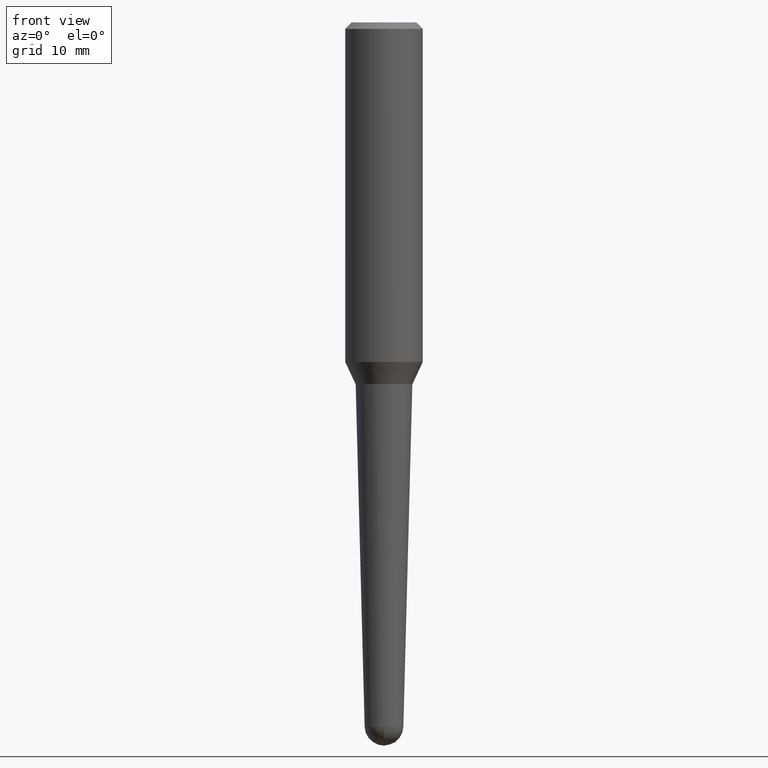
[diagram: clean part render]
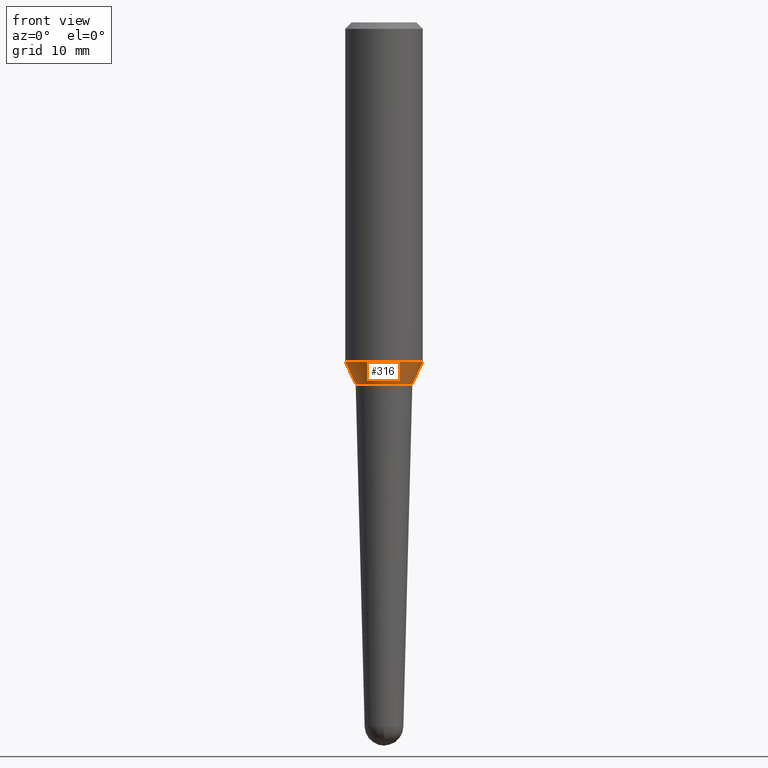
[diagram: same view with one face highlighted and labeled with its STEP entity id]
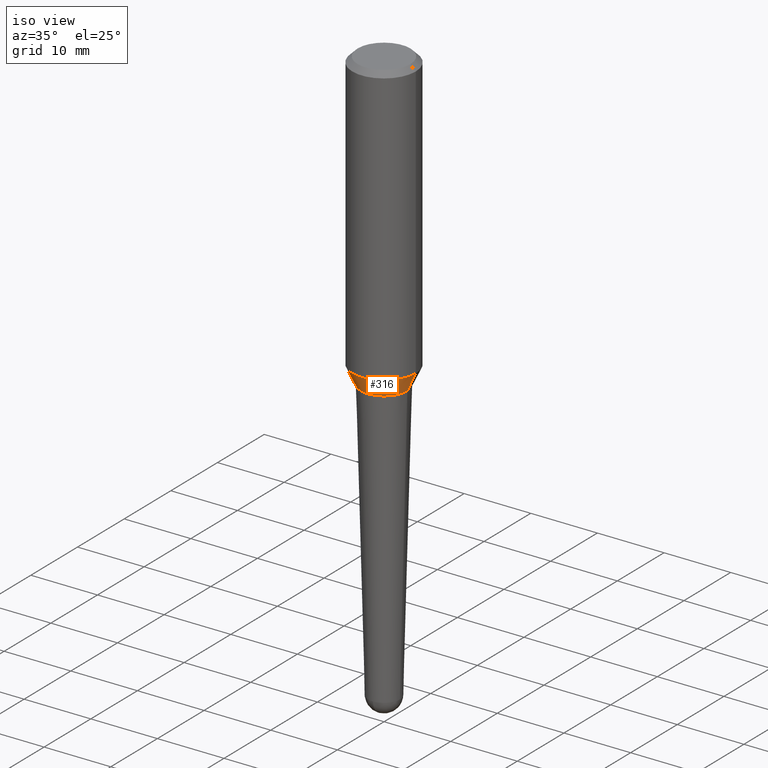
[diagram: same view with one face highlighted and labeled with its STEP entity id]
A machine part, front view. The second image highlights one B-rep face of the part: STEP entity #316.
A second angle (iso view) of the same face is appended — the face is thin or edge-on in the first view.
In plain terms, the highlighted conical surface has half-angle 25 deg.
Its self-contained STEP definition (entity closure, byte-faithful):
#3 = ORIENTED_EDGE ( 'NONE', *, *, #361, .F. ) ;
#15 = LINE ( 'NONE', #23, #411 ) ;
#16 = CARTESIAN_POINT ( 'NONE',  ( 4.278347676420896243E-29, -6.108346602306083167E-15, -1.749500000000000055 ) ) ;
#23 = CARTESIAN_POINT ( 'NONE',  ( -0.1382012772385305677, -5.126367466160027236E-15, -1.749500000000000055 ) ) ;
#37 = CARTESIAN_POINT ( 'NONE',  ( 0.1382012772385305677, -7.073400963271313824E-15, -1.749500000000000055 ) ) ;
#41 = EDGE_CURVE ( 'NONE', #318, #418, #356, .T. ) ;
#45 = EDGE_CURVE ( 'NONE', #355, #418, #358, .T. ) ;
#46 = AXIS2_PLACEMENT_3D ( 'NONE', #16, #68, #420 ) ;
#59 = DIRECTION ( 'NONE',  ( -2.445468806185136597E-29, 3.491481338843145583E-15, 1.000000000000000000 ) ) ;
#68 = DIRECTION ( 'NONE',  ( -2.445468806185136597E-29, 3.491481338843145583E-15, 1.000000000000000000 ) ) ;
#87 = ORIENTED_EDGE ( 'NONE', *, *, #41, .T. ) ;
#89 = ORIENTED_EDGE ( 'NONE', *, *, #45, .F. ) ;
#110 = CIRCLE ( 'NONE', #222, 0.1382012772385305677 ) ;
#133 = DIRECTION ( 'NONE',  ( 1.000000000000000000, -6.982962677686263555E-15, 0.000000000000000000 ) ) ;
#141 = VERTEX_POINT ( 'NONE', #407 ) ;
#168 = CONICAL_SURFACE ( 'NONE', #46, 0.1382012772385305677, 0.4363323129985711701 ) ;
#171 = CARTESIAN_POINT ( 'NONE',  ( 4.019809163081975824E-29, -5.739222125063926739E-15, -1.643778547865743178 ) ) ;
#185 = CARTESIAN_POINT ( 'NONE',  ( 0.1875000000000002220, -7.048527627130101747E-15, -1.643778547865743178 ) ) ;
#199 = ORIENTED_EDGE ( 'NONE', *, *, #283, .T. ) ;
#205 = DIRECTION ( 'NONE',  ( 0.4226182617406892827, 2.132291770428285464E-16, 0.9063077870366545996 ) ) ;
#222 = AXIS2_PLACEMENT_3D ( 'NONE', #373, #59, #133 ) ;
#236 = DIRECTION ( 'NONE',  ( -0.4226182617406892827, 6.167240084480781602E-15, 0.9063077870366545996 ) ) ;
#244 = DIRECTION ( 'NONE',  ( 1.000000000000000000, -6.982962677686265133E-15, 0.000000000000000000 ) ) ;
#250 = DIRECTION ( 'NONE',  ( -2.445468806185136597E-29, 3.491481338843145583E-15, 1.000000000000000000 ) ) ;
#280 = EDGE_LOOP ( 'NONE', ( #3, #199, #87, #89 ) ) ;
#283 = EDGE_CURVE ( 'NONE', #141, #318, #110, .T. ) ;
#316 = ADVANCED_FACE ( 'NONE', ( #333 ), #168, .T. ) ;
#318 = VERTEX_POINT ( 'NONE', #391 ) ;
#333 = FACE_OUTER_BOUND ( 'NONE', #280, .T. ) ;
#341 = CARTESIAN_POINT ( 'NONE',  ( -0.1875000000000002220, -4.406954495513735735E-15, -1.643778547865743178 ) ) ;
#355 = VERTEX_POINT ( 'NONE', #341 ) ;
#356 = LINE ( 'NONE', #37, #390 ) ;
#358 = CIRCLE ( 'NONE', #401, 0.1875000000000002220 ) ;
#361 = EDGE_CURVE ( 'NONE', #141, #355, #15, .T. ) ;
#373 = CARTESIAN_POINT ( 'NONE',  ( 4.278347676420896243E-29, -6.108346602306083167E-15, -1.749500000000000055 ) ) ;
#390 = VECTOR ( 'NONE', #205, 39.37007874015748143 ) ;
#391 = CARTESIAN_POINT ( 'NONE',  ( 0.1382012772385305677, -7.073400963271314613E-15, -1.749500000000000055 ) ) ;
#401 = AXIS2_PLACEMENT_3D ( 'NONE', #171, #250, #244 ) ;
#407 = CARTESIAN_POINT ( 'NONE',  ( -0.1382012772385305677, -5.126367466160027236E-15, -1.749500000000000055 ) ) ;
#411 = VECTOR ( 'NONE', #236, 39.37007874015748143 ) ;
#418 = VERTEX_POINT ( 'NONE', #185 ) ;
#420 = DIRECTION ( 'NONE',  ( 1.000000000000000000, -6.982962677686263555E-15, 0.000000000000000000 ) ) ;